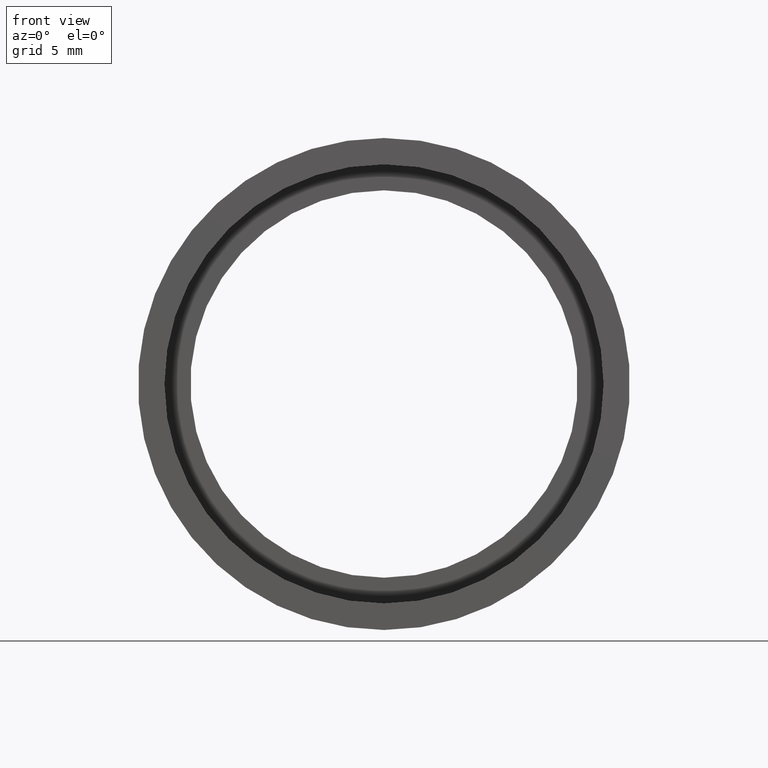
[diagram: clean part render]
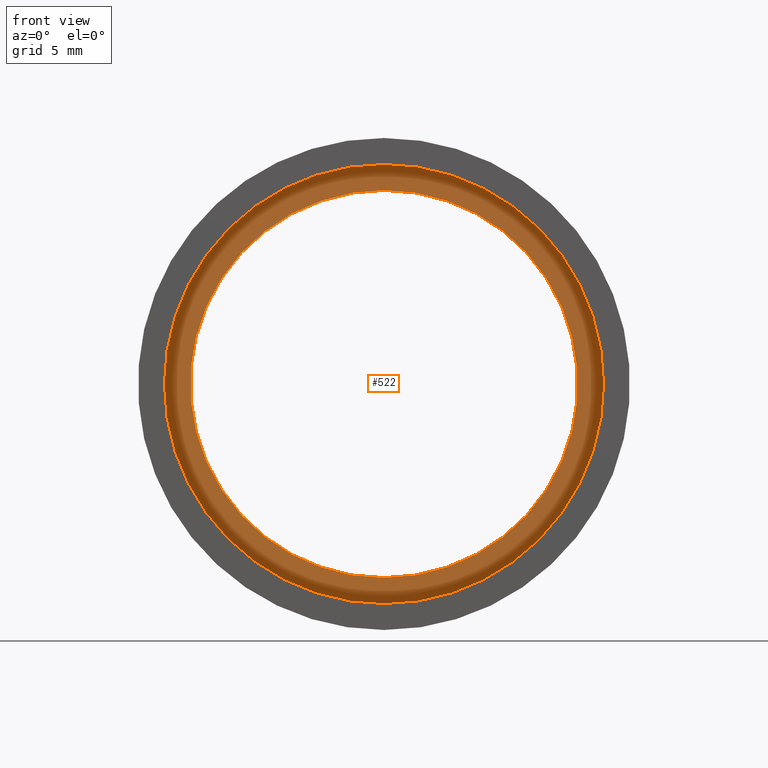
[diagram: same view with one face highlighted and labeled with its STEP entity id]
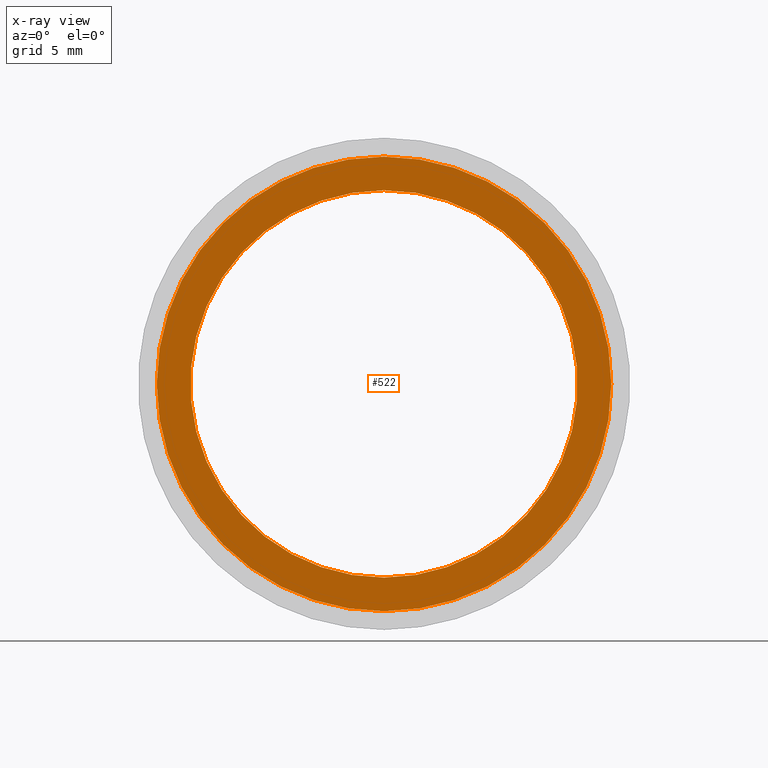
[diagram: x-ray of the same camera — body ghosted, the highlighted face saturated]
A machine part, front view. The second image highlights one B-rep face of the part: STEP entity #522.
The next image is the same camera in x-ray: the body ghosted, the highlighted face saturated — about 0% of this face is hidden behind the body in this view.
In plain terms, the highlighted planar face has unit normal (-0, 1, 0).
Its self-contained STEP definition (entity closure, byte-faithful):
#27 = AXIS2_PLACEMENT_3D ( 'NONE', #488, #215, #387 ) ;
#28 = CIRCLE ( 'NONE', #27, 15.00000000000001600 ) ;
#48 = CARTESIAN_POINT ( 'NONE',  ( 0.0000000000000000000, 5.499999999999976900, 15.00000000000001600 ) ) ;
#54 = EDGE_CURVE ( 'NONE', #556, #381, #310, .T. ) ;
#68 = ORIENTED_EDGE ( 'NONE', *, *, #402, .T. ) ;
#81 = DIRECTION ( 'NONE',  ( -0.0000000000000000000, 1.000000000000000000, -0.0000000000000000000 ) ) ;
#87 = EDGE_CURVE ( 'NONE', #381, #556, #273, .T. ) ;
#108 = CARTESIAN_POINT ( 'NONE',  ( 2.155378366499344400E-015, 5.499999999999976900, -17.60000000000002300 ) ) ;
#112 = EDGE_CURVE ( 'NONE', #286, #434, #28, .T. ) ;
#177 = FACE_BOUND ( 'NONE', #491, .T. ) ;
#178 = ORIENTED_EDGE ( 'NONE', *, *, #112, .T. ) ;
#199 = DIRECTION ( 'NONE',  ( 0.0000000000000000000, 0.0000000000000000000, 1.000000000000000000 ) ) ;
#212 = CARTESIAN_POINT ( 'NONE',  ( 0.0000000000000000000, 5.499999999999976900, 17.60000000000002300 ) ) ;
#215 = DIRECTION ( 'NONE',  ( -0.0000000000000000000, 1.000000000000000000, -0.0000000000000000000 ) ) ;
#241 = DIRECTION ( 'NONE',  ( -0.0000000000000000000, 1.000000000000000000, -0.0000000000000000000 ) ) ;
#249 = CARTESIAN_POINT ( 'NONE',  ( 17.60000000000002300, 5.499999999999983100, 0.0000000000000000000 ) ) ;
#252 = CIRCLE ( 'NONE', #604, 15.00000000000001600 ) ;
#264 = AXIS2_PLACEMENT_3D ( 'NONE', #362, #81, #350 ) ;
#273 = CIRCLE ( 'NONE', #494, 17.60000000000002300 ) ;
#286 = VERTEX_POINT ( 'NONE', #421 ) ;
#303 = DIRECTION ( 'NONE',  ( -0.0000000000000000000, 1.000000000000000000, -0.0000000000000000000 ) ) ;
#310 = CIRCLE ( 'NONE', #264, 17.60000000000002300 ) ;
#350 = DIRECTION ( 'NONE',  ( 0.0000000000000000000, 0.0000000000000000000, 1.000000000000000000 ) ) ;
#356 = DIRECTION ( 'NONE',  ( 0.0000000000000000000, 0.0000000000000000000, 1.000000000000000000 ) ) ;
#362 = CARTESIAN_POINT ( 'NONE',  ( 0.0000000000000000000, 5.499999999999976900, 0.0000000000000000000 ) ) ;
#381 = VERTEX_POINT ( 'NONE', #108 ) ;
#385 = AXIS2_PLACEMENT_3D ( 'NONE', #249, #394, #486 ) ;
#387 = DIRECTION ( 'NONE',  ( 0.0000000000000000000, 0.0000000000000000000, 1.000000000000000000 ) ) ;
#394 = DIRECTION ( 'NONE',  ( -0.0000000000000000000, 1.000000000000000000, 0.0000000000000000000 ) ) ;
#402 = EDGE_CURVE ( 'NONE', #434, #286, #252, .T. ) ;
#421 = CARTESIAN_POINT ( 'NONE',  ( 1.836970198721032000E-015, 5.499999999999976900, -15.00000000000001600 ) ) ;
#425 = PLANE ( 'NONE',  #385 ) ;
#433 = CARTESIAN_POINT ( 'NONE',  ( 0.0000000000000000000, 5.499999999999976900, 0.0000000000000000000 ) ) ;
#434 = VERTEX_POINT ( 'NONE', #48 ) ;
#442 = FACE_OUTER_BOUND ( 'NONE', #602, .T. ) ;
#483 = CARTESIAN_POINT ( 'NONE',  ( 0.0000000000000000000, 5.499999999999976900, 0.0000000000000000000 ) ) ;
#486 = DIRECTION ( 'NONE',  ( 0.0000000000000000000, 0.0000000000000000000, 1.000000000000000000 ) ) ;
#488 = CARTESIAN_POINT ( 'NONE',  ( 0.0000000000000000000, 5.499999999999976900, 0.0000000000000000000 ) ) ;
#491 = EDGE_LOOP ( 'NONE', ( #68, #178 ) ) ;
#494 = AXIS2_PLACEMENT_3D ( 'NONE', #433, #303, #356 ) ;
#501 = ORIENTED_EDGE ( 'NONE', *, *, #54, .F. ) ;
#518 = ORIENTED_EDGE ( 'NONE', *, *, #87, .F. ) ;
#522 = ADVANCED_FACE ( 'NONE', ( #442, #177 ), #425, .F. ) ;
#556 = VERTEX_POINT ( 'NONE', #212 ) ;
#602 = EDGE_LOOP ( 'NONE', ( #501, #518 ) ) ;
#604 = AXIS2_PLACEMENT_3D ( 'NONE', #483, #241, #199 ) ;